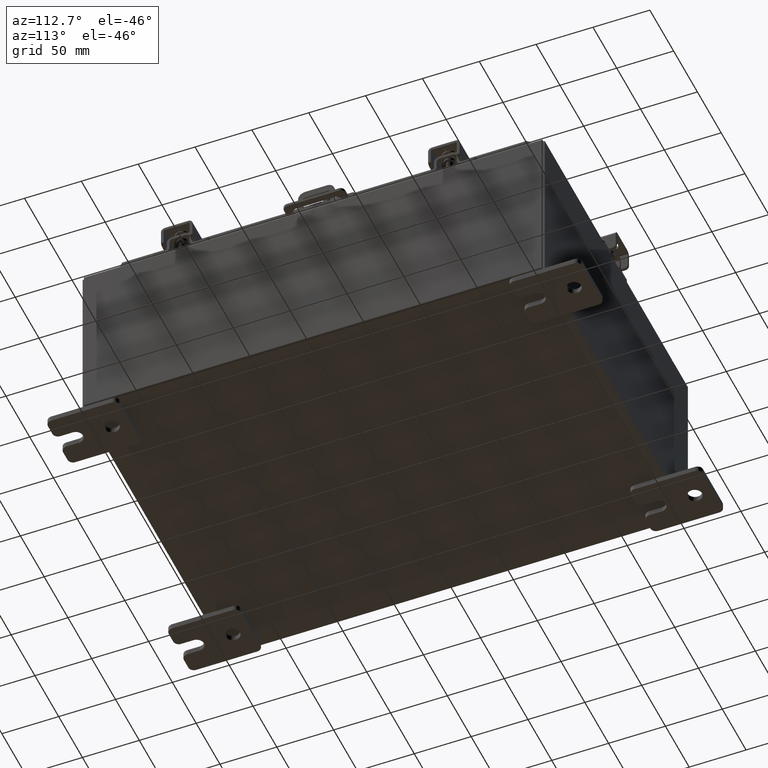
[diagram: clean part render]
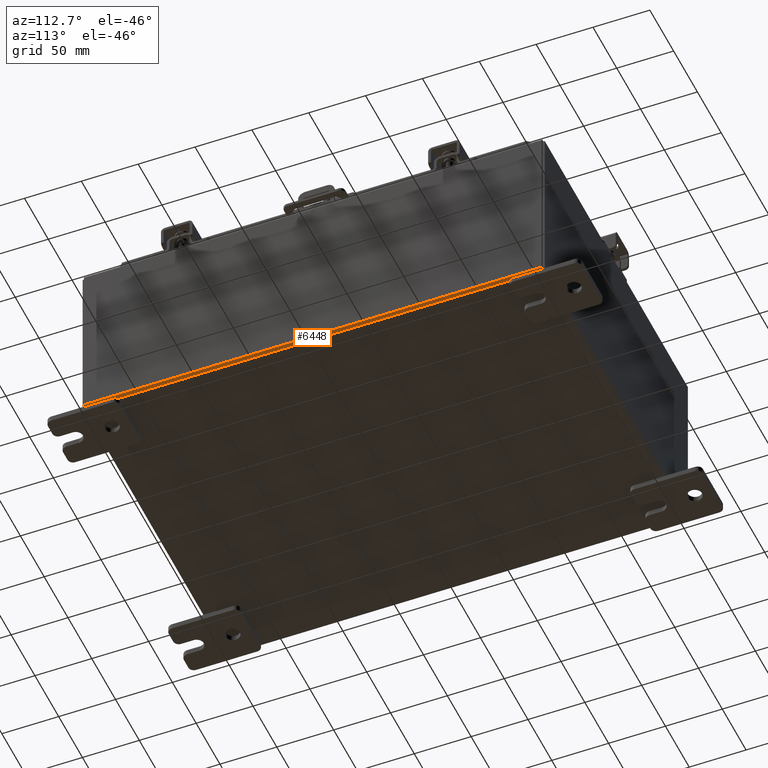
[diagram: same view with one face highlighted and labeled with its STEP entity id]
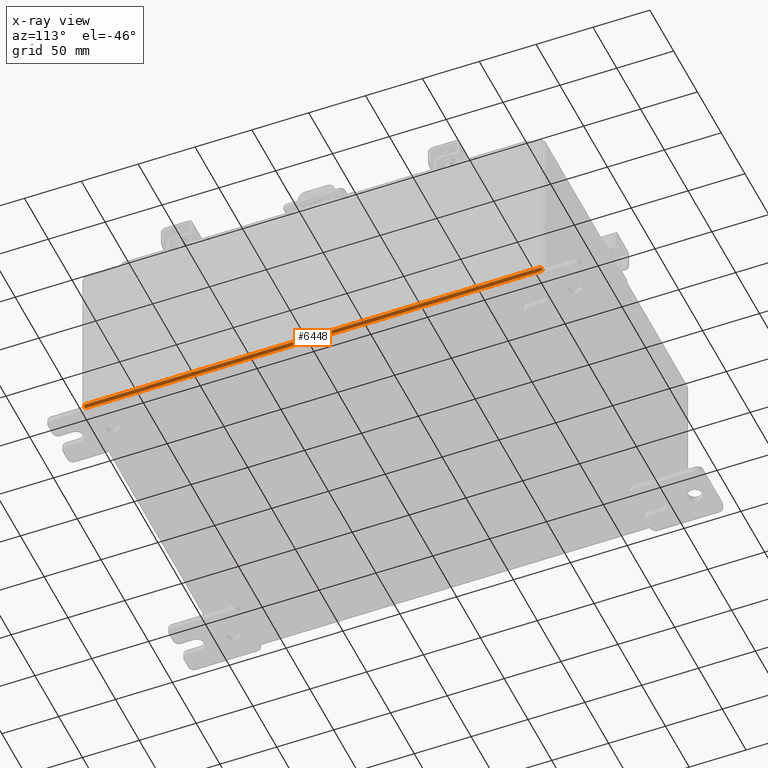
[diagram: x-ray of the same camera — body ghosted, the highlighted face saturated]
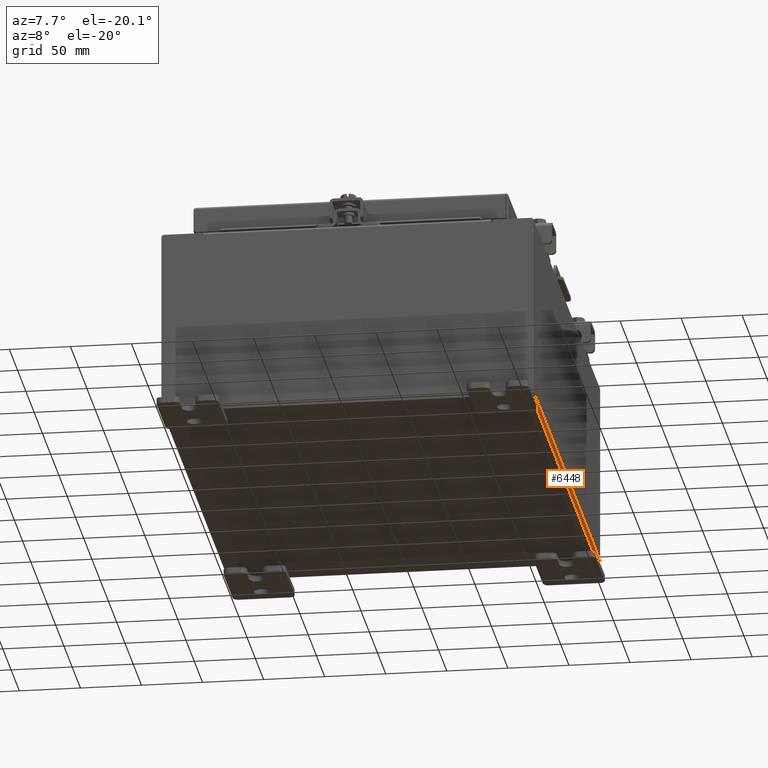
[diagram: same view with one face highlighted and labeled with its STEP entity id]
A machine part, auxiliary view. The second image highlights one B-rep face of the part: STEP entity #6448.
The next image is the same camera in x-ray: the body ghosted, the highlighted face saturated — about 0% of this face is hidden behind the body in this view.
A second angle (auxiliary view) of the same face is appended — the face is thin or edge-on in the first view.
In plain terms, the highlighted cylindrical surface (edge-blend (fillet) strip) has radius 2.2276 mm, axis along (0, 1, 0).
Its self-contained STEP definition (entity closure, byte-faithful):
#710 = CARTESIAN_POINT ( 'NONE',  ( 5.912299999999999200, 7.925300000000000000, -0.07469999999999994700 ) ) ;
#1328 = CIRCLE ( 'NONE', #24546, 0.08770000000000009700 ) ;
#4121 = CARTESIAN_POINT ( 'NONE',  ( 5.912299999999999200, 7.925300000000000000, 0.01300000000000015200 ) ) ;
#4265 = CARTESIAN_POINT ( 'NONE',  ( 5.912299999999999200, 7.925300000000000000, 0.01300000000000015200 ) ) ;
#4648 = CARTESIAN_POINT ( 'NONE',  ( 5.999999999999999100, 7.925300000000000000, 0.01299999999999984700 ) ) ;
#4977 = CIRCLE ( 'NONE', #10651, 0.08770000000000009700 ) ;
#5230 = DIRECTION ( 'NONE',  ( -0.0000000000000000000, -1.000000000000000000, -0.0000000000000000000 ) ) ;
#5236 = EDGE_CURVE ( 'NONE', #5877, #5999, #12602, .T. ) ;
#5877 = VERTEX_POINT ( 'NONE', #710 ) ;
#5878 = VERTEX_POINT ( 'NONE', #4648 ) ;
#5999 = VERTEX_POINT ( 'NONE', #9050 ) ;
#6135 = DIRECTION ( 'NONE',  ( 0.0000000000000000000, 0.0000000000000000000, 1.000000000000000000 ) ) ;
#6448 = ADVANCED_FACE ( 'NONE', ( #25839 ), #19865, .T. ) ;
#7224 = AXIS2_PLACEMENT_3D ( 'NONE', #4265, #22325, #20293 ) ;
#8254 = ORIENTED_EDGE ( 'NONE', *, *, #9132, .F. ) ;
#8903 = VECTOR ( 'NONE', #5230, 39.37007874015748100 ) ;
#9050 = CARTESIAN_POINT ( 'NONE',  ( 5.912299999999994800, -7.925300000000000900, -0.07470000000000000300 ) ) ;
#9132 = EDGE_CURVE ( 'NONE', #5878, #5877, #4977, .T. ) ;
#10651 = AXIS2_PLACEMENT_3D ( 'NONE', #4121, #18205, #6135 ) ;
#11822 = CARTESIAN_POINT ( 'NONE',  ( 5.912299999999999200, -7.925300000000000000, 0.01300000000000015200 ) ) ;
#12170 = VERTEX_POINT ( 'NONE', #25388 ) ;
#12602 = LINE ( 'NONE', #19434, #22682 ) ;
#13851 = DIRECTION ( 'NONE',  ( 0.0000000000000000000, 0.0000000000000000000, 1.000000000000000000 ) ) ;
#14152 = EDGE_CURVE ( 'NONE', #5999, #12170, #1328, .T. ) ;
#18087 = EDGE_CURVE ( 'NONE', #5878, #12170, #19590, .T. ) ;
#18205 = DIRECTION ( 'NONE',  ( 0.0000000000000000000, 1.000000000000000000, 0.0000000000000000000 ) ) ;
#19016 = ORIENTED_EDGE ( 'NONE', *, *, #18087, .T. ) ;
#19316 = CARTESIAN_POINT ( 'NONE',  ( 5.999999999999999100, -7.925300000000000000, 0.01299999999999984700 ) ) ;
#19434 = CARTESIAN_POINT ( 'NONE',  ( 5.912299999999999200, 7.925300000000000000, -0.07469999999999994700 ) ) ;
#19590 = LINE ( 'NONE', #19316, #8903 ) ;
#19865 = CYLINDRICAL_SURFACE ( 'NONE', #7224, 0.08770000000000026400 ) ;
#20293 = DIRECTION ( 'NONE',  ( 1.000000000000000000, 0.0000000000000000000, -3.504366012397134600E-015 ) ) ;
#21376 = DIRECTION ( 'NONE',  ( -0.0000000000000000000, -1.000000000000000000, -0.0000000000000000000 ) ) ;
#22325 = DIRECTION ( 'NONE',  ( 0.0000000000000000000, 1.000000000000000000, 0.0000000000000000000 ) ) ;
#22489 = ORIENTED_EDGE ( 'NONE', *, *, #5236, .F. ) ;
#22682 = VECTOR ( 'NONE', #21376, 39.37007874015748100 ) ;
#24546 = AXIS2_PLACEMENT_3D ( 'NONE', #11822, #25901, #13851 ) ;
#25388 = CARTESIAN_POINT ( 'NONE',  ( 5.999999999999999100, -7.925300000000000000, 0.01299999999999984500 ) ) ;
#25668 = EDGE_LOOP ( 'NONE', ( #22489, #8254, #19016, #26014 ) ) ;
#25839 = FACE_OUTER_BOUND ( 'NONE', #25668, .T. ) ;
#25901 = DIRECTION ( 'NONE',  ( -0.0000000000000000000, -1.000000000000000000, -0.0000000000000000000 ) ) ;
#26014 = ORIENTED_EDGE ( 'NONE', *, *, #14152, .F. ) ;